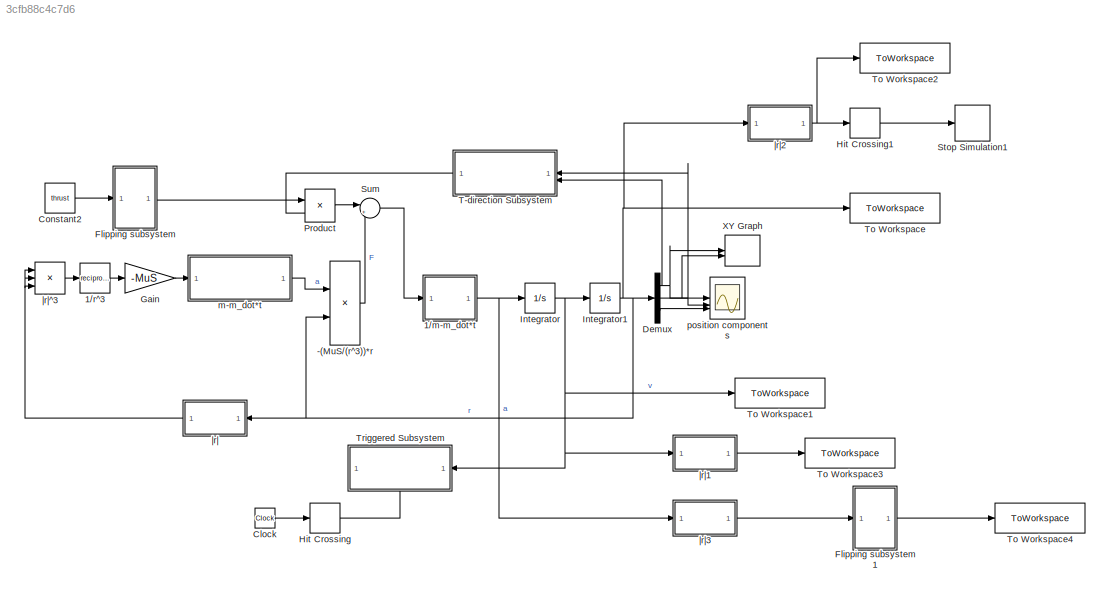
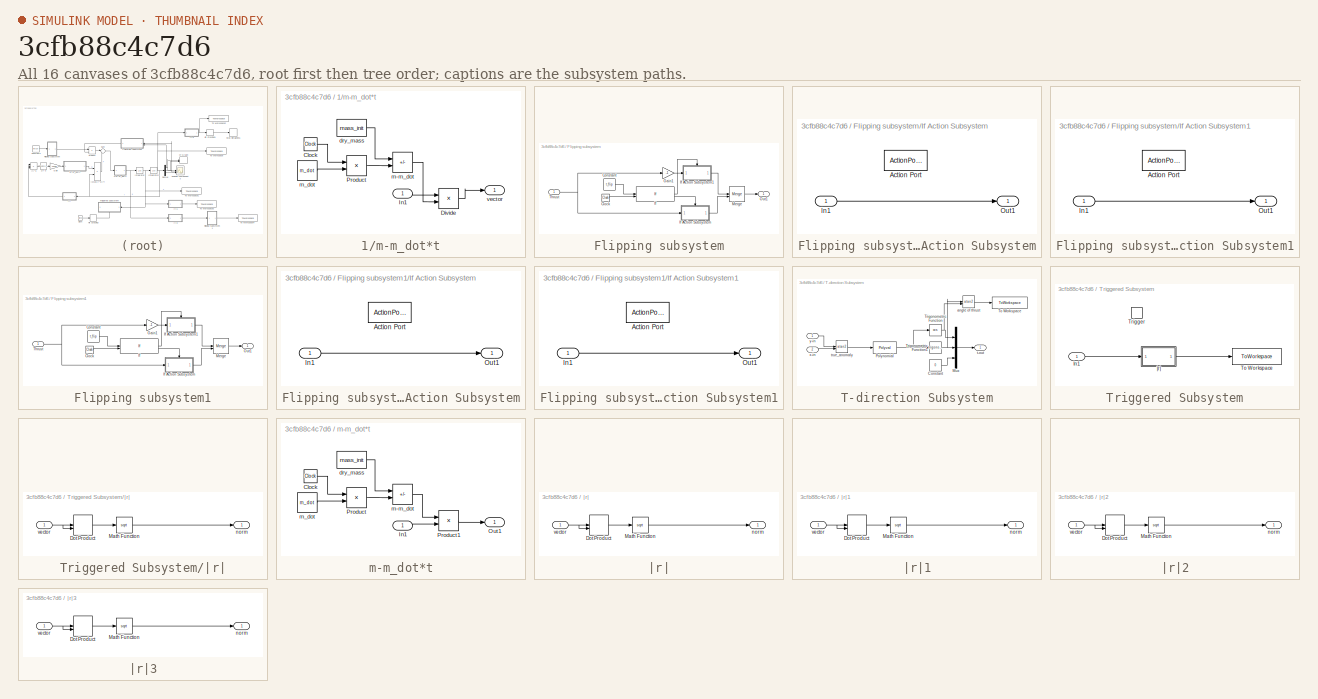
[diagram: thumbnail index - all 16 canvases of the model, root first then tree order]
MODEL slx_3cfb88c4c7d6
KIND model
CONFIG AbsTol = auto
CONFIG EnableMultiTasking = on
CONFIG FixedStep = maxstep
CONFIG MaxStep = maxstep
CONFIG MinStep = auto
CONFIG RelTol = 1e-3
CONFIG SampleTimeConstraint = Unconstrained
CONFIG SolverName = FixedStepAuto
CONFIG StartTime = 0.0
CONFIG StopTime = tstop
BLOCK [Product] -(MuS//(r^3))*r
BLOCK [SubSystem] 1//m-m_dot*t
BLOCK [Clock] 1//m-m_dot*t/Clock
BLOCK [Product] 1//m-m_dot*t/Divide
  Inputs = */
BLOCK [Inport] 1//m-m_dot*t/In1
BLOCK [Product] 1//m-m_dot*t/Product
BLOCK [Constant] 1//m-m_dot*t/dry_mass
  Value = mass_init
BLOCK [Sum] 1//m-m_dot*t/m-m_dot
  IconShape = rectangular
  Inputs = +-
BLOCK [Constant] 1//m-m_dot*t/m_dot
  Value = m_dot
BLOCK [Outport] 1//m-m_dot*t/vector
BLOCK [Math] 1//r^3
  Operator = reciprocal
BLOCK [Clock] Clock
BLOCK [Constant] Constant2
  Value = thrust
BLOCK [Demux] Demux
  DisplayOption = none
  Outputs = 3
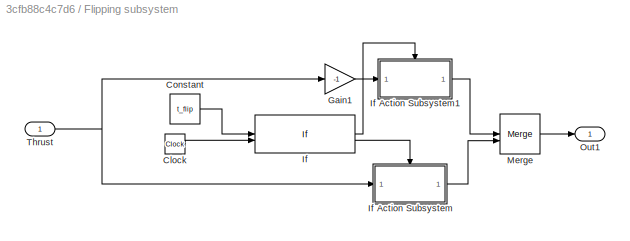
BLOCK [SubSystem] Flipping subsystem
BLOCK [Clock] Flipping subsystem/Clock
BLOCK [Constant] Flipping subsystem/Constant
  Value = t_flip
BLOCK [Gain] Flipping subsystem/Gain1
  Gain = -1
BLOCK [If] Flipping subsystem/If
  IfExpression = u2> u1
  NumInputs = 2
BLOCK [SubSystem] Flipping subsystem/If Action Subsystem
  TreatAsAtomicUnit = on
BLOCK [ActionPort] Flipping subsystem/If Action Subsystem/Action Port
  ActionPortLabel = else
BLOCK [Inport] Flipping subsystem/If Action Subsystem/In1
BLOCK [Outport] Flipping subsystem/If Action Subsystem/Out1
BLOCK [SubSystem] Flipping subsystem/If Action Subsystem1
  TreatAsAtomicUnit = on
BLOCK [ActionPort] Flipping subsystem/If Action Subsystem1/Action Port
  ActionPortLabel = if(u2> u1)
BLOCK [Inport] Flipping subsystem/If Action Subsystem1/In1
BLOCK [Outport] Flipping subsystem/If Action Subsystem1/Out1
BLOCK [Merge] Flipping subsystem/Merge
BLOCK [Outport] Flipping subsystem/Out1
BLOCK [Inport] Flipping subsystem/Thrust
BLOCK [SubSystem] Flipping subsystem1
BLOCK [Clock] Flipping subsystem1/Clock
BLOCK [Constant] Flipping subsystem1/Constant
  Value = t_flip
BLOCK [Gain] Flipping subsystem1/Gain1
  Gain = -1
BLOCK [If] Flipping subsystem1/If
  IfExpression = u2> u1
  NumInputs = 2
BLOCK [SubSystem] Flipping subsystem1/If Action Subsystem
  TreatAsAtomicUnit = on
BLOCK [ActionPort] Flipping subsystem1/If Action Subsystem/Action Port
  ActionPortLabel = else
BLOCK [Inport] Flipping subsystem1/If Action Subsystem/In1
BLOCK [Outport] Flipping subsystem1/If Action Subsystem/Out1
BLOCK [SubSystem] Flipping subsystem1/If Action Subsystem1
  TreatAsAtomicUnit = on
BLOCK [ActionPort] Flipping subsystem1/If Action Subsystem1/Action Port
  ActionPortLabel = if(u2> u1)
BLOCK [Inport] Flipping subsystem1/If Action Subsystem1/In1
BLOCK [Outport] Flipping subsystem1/If Action Subsystem1/Out1
BLOCK [Merge] Flipping subsystem1/Merge
BLOCK [Outport] Flipping subsystem1/Out1
BLOCK [Inport] Flipping subsystem1/Thrust
BLOCK [Gain] Gain
  Gain = -MuS
  OutDataTypeStr = Inherit: Same as input
  ParamDataTypeStr = Inherit: Same as input
  SaturateOnIntegerOverflow = on
BLOCK [HitCross] Hit Crossing
  HitCrossingDirection = rising
  HitCrossingOffset = t_flip
BLOCK [HitCross] Hit Crossing1
  HitCrossingDirection = rising
  HitCrossingOffset = d_o
BLOCK [Integrator] Integrator
  InitialCondition = v0
BLOCK [Integrator] Integrator1
  InitialCondition = r0
BLOCK [Product] Product
BLOCK [Stop] Stop Simulation1
BLOCK [Sum] Sum
  Inputs = |++
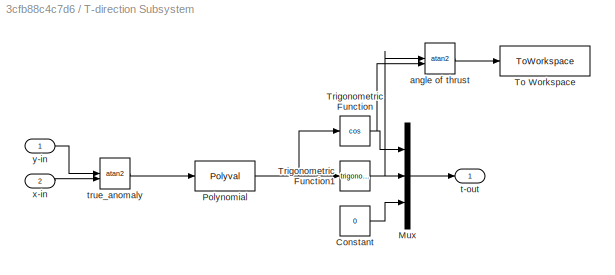
BLOCK [SubSystem] T-direction Subsystem
BLOCK [Constant] T-direction Subsystem/Constant
  Value = 0
BLOCK [Mux] T-direction Subsystem/Mux
  DisplayOption = bar
  Inputs = 3
BLOCK [Polyval] T-direction Subsystem/Polynomial
  Coefs = a_set
BLOCK [ToWorkspace] T-direction Subsystem/To Workspace
  FixptAsFi = on
  MaxDataPoints = inf
  SampleTime = -1
  Save2DSignal = 2-D array (concatenate along first dimension)
  VariableName = t_angle
BLOCK [Trigonometry] T-direction Subsystem/Trigonometric Function
  Operator = cos
BLOCK [Trigonometry] T-direction Subsystem/Trigonometric Function1
BLOCK [Trigonometry] T-direction Subsystem/angle of thrust
  Operator = atan2
BLOCK [Outport] T-direction Subsystem/t-out
BLOCK [Trigonometry] T-direction Subsystem/true_anomaly
  Operator = atan2
BLOCK [Inport] T-direction Subsystem/x-in
  Port = 2
BLOCK [Inport] T-direction Subsystem/y-in
BLOCK [ToWorkspace] To Workspace
  FixptAsFi = on
  MaxDataPoints = inf
  SampleTime = -1
  SaveFormat = Timeseries
  VariableName = pos
BLOCK [ToWorkspace] To Workspace1
  FixptAsFi = on
  MaxDataPoints = inf
  SampleTime = -1
  VariableName = vel
BLOCK [ToWorkspace] To Workspace2
  FixptAsFi = on
  MaxDataPoints = inf
  SampleTime = -1
  SaveFormat = Timeseries
  VariableName = pos_norm
BLOCK [ToWorkspace] To Workspace3
  FixptAsFi = on
  MaxDataPoints = inf
  SampleTime = -1
  SaveFormat = Timeseries
  VariableName = vel_norm
BLOCK [ToWorkspace] To Workspace4
  FixptAsFi = on
  MaxDataPoints = inf
  SampleTime = -1
  SaveFormat = Timeseries
  VariableName = accel_norm
BLOCK [SubSystem] Triggered Subsystem
  NameLocation = top
  TreatAsAtomicUnit = on
BLOCK [Inport] Triggered Subsystem/In1
BLOCK [ToWorkspace] Triggered Subsystem/To Workspace
  FixptAsFi = on
  MaxDataPoints = inf
  SampleTime = -1
  VariableName = v_max
BLOCK [TriggerPort] Triggered Subsystem/Trigger
  StatesWhenEnabling = held
  VariantControl = (inherit)
BLOCK [SubSystem] Triggered Subsystem/|r|
BLOCK [DotProduct] Triggered Subsystem/|r|/Dot Product
  OutDataTypeStr = Inherit: Inherit via internal rule
BLOCK [Math] Triggered Subsystem/|r|/Math Function
  Operator = sqrt
  SignedPower = on
BLOCK [Outport] Triggered Subsystem/|r|/norm
  VectorParamsAs1DForOutWhenUnconnected = off
BLOCK [Inport] Triggered Subsystem/|r|/vector
BLOCK [Record] XY Graph
  CompatibilityTag = XY
  FileSettingsInternal = {"entries":[{"content":{"excelSettings":{"content":{},"type":"Streamout.ExcelSettings"}},"type":"Streamout.FileSettingStorage","uuid":"ff7e06af-6e21-4bd0-9966-7a4d89266818"}],"packageUris":["http://schema.mathworks.com/mf0/streamout_blocks/R2020a"],"version":"1.0"}
  Layout = [1 1]
  SignalsInternal = {"entries":[{"content":{"signals":[{"content":{"blockPath":["orbitEOM_o_e_graph/XY Graph"],"channel":[],"dimensions":[1],"domain":"orbitEOM_o_e_graph/XY Graph","lineColor":"#a2142f","plots":[1],"port":1,"sid":[""],"signalID":75897,"signalName":"Demux:1"},"type":"RecordBlkView.Signal","uuid":"e02dfef0-b3ca-4bda-9eec-72397f5a5bda"},{"content":{"blockPath":["orbitEOM_o_e_graph/XY Graph"],"channel":[]...<+405ch>
  VisualizationBindings = {"xyplotplugin":{"info":[{"series":[{"bindingParametersList":[{"parameter":"X-Axis","signalID":75897,"signalName":"Demux:1"},{"parameter":"Y-Axis","signalID":75901,"signalName":"Demux:2"}],"seriesID":42219}],"subplotID":1}]}}
BLOCK [SubSystem] m-m_dot*t
BLOCK [Clock] m-m_dot*t/Clock
BLOCK [Inport] m-m_dot*t/In1
BLOCK [Outport] m-m_dot*t/Out1
BLOCK [Product] m-m_dot*t/Product
BLOCK [Product] m-m_dot*t/Product1
BLOCK [Constant] m-m_dot*t/dry_mass
  Value = mass_init
BLOCK [Sum] m-m_dot*t/m-m_dot
  IconShape = rectangular
  Inputs = +-
BLOCK [Constant] m-m_dot*t/m_dot
  Value = m_dot
BLOCK [Scope] position components
  Floating = off
  NumInputPorts = 3
  ScopeSpecificationString = Simulink.scopes.TimeScopeBlockCfg('CurrentConfiguration', extmgr.ConfigurationSet(extmgr.Configuration('Core','General UI',true),extmgr.Configuration('Core','Source UI',true),extmgr.Configuration('Sources','WiredSimulink',true,'DataLoggingSaveFormat','StructureWithTime','DataLoggingDecimation','1','DataLoggingDecimateData',true,'DataLoggingVariableName','ScopeData1'),extmgr.Configuration('Visuals'...<+3002ch>
BLOCK [SubSystem] |r|
BLOCK [DotProduct] |r|/Dot Product
  OutDataTypeStr = Inherit: Inherit via internal rule
BLOCK [Math] |r|/Math Function
  Operator = sqrt
  SignedPower = on
BLOCK [Outport] |r|/norm
  VectorParamsAs1DForOutWhenUnconnected = off
BLOCK [Inport] |r|/vector
BLOCK [SubSystem] |r|1
BLOCK [DotProduct] |r|1/Dot Product
  OutDataTypeStr = Inherit: Inherit via internal rule
BLOCK [Math] |r|1/Math Function
  Operator = sqrt
  SignedPower = on
BLOCK [Outport] |r|1/norm
  VectorParamsAs1DForOutWhenUnconnected = off
BLOCK [Inport] |r|1/vector
BLOCK [SubSystem] |r|2
BLOCK [DotProduct] |r|2/Dot Product
  OutDataTypeStr = Inherit: Inherit via internal rule
BLOCK [Math] |r|2/Math Function
  Operator = sqrt
  SignedPower = on
BLOCK [Outport] |r|2/norm
  VectorParamsAs1DForOutWhenUnconnected = off
BLOCK [Inport] |r|2/vector
BLOCK [SubSystem] |r|3
BLOCK [DotProduct] |r|3/Dot Product
  OutDataTypeStr = Inherit: Inherit via internal rule
BLOCK [Math] |r|3/Math Function
  Operator = sqrt
  SignedPower = on
BLOCK [Outport] |r|3/norm
  VectorParamsAs1DForOutWhenUnconnected = off
BLOCK [Inport] |r|3/vector
BLOCK [Product] |r|^3
  Inputs = 3
LINE -(MuS//(r^3))*r:1 -> Sum:2
LINE 1//m-m_dot*t/Clock:1 -> 1//m-m_dot*t/Product:1
LINE 1//m-m_dot*t/Divide:1 -> 1//m-m_dot*t/vector:1
LINE 1//m-m_dot*t/In1:1 -> 1//m-m_dot*t/Divide:1
LINE 1//m-m_dot*t/Product:1 -> 1//m-m_dot*t/m-m_dot:2
LINE 1//m-m_dot*t/dry_mass:1 -> 1//m-m_dot*t/m-m_dot:1
LINE 1//m-m_dot*t/m-m_dot:1 -> 1//m-m_dot*t/Divide:2
LINE 1//m-m_dot*t/m_dot:1 -> 1//m-m_dot*t/Product:2
NET 1//m-m_dot*t:1 -> Integrator:1, |r|3:1
LINE 1//r^3:1 -> Gain:1
LINE Clock:1 -> Hit Crossing:1
LINE Constant2:1 -> Flipping subsystem:1
NET Demux:1 -> T-direction Subsystem:2, XY Graph:1, position components:1
NET Demux:2 -> T-direction Subsystem:1, XY Graph:2, position components:2
LINE Demux:3 -> position components:3
LINE Flipping subsystem/Clock:1 -> Flipping subsystem/If:2
LINE Flipping subsystem/Constant:1 -> Flipping subsystem/If:1
LINE Flipping subsystem/Gain1:1 -> Flipping subsystem/If Action Subsystem1:1
LINE Flipping subsystem/If Action Subsystem/In1:1 -> Flipping subsystem/If Action Subsystem/Out1:1
LINE Flipping subsystem/If Action Subsystem1/In1:1 -> Flipping subsystem/If Action Subsystem1/Out1:1
LINE Flipping subsystem/If Action Subsystem1:1 -> Flipping subsystem/Merge:1
LINE Flipping subsystem/If Action Subsystem:1 -> Flipping subsystem/Merge:2
LINE Flipping subsystem/If:1 -> Flipping subsystem/If Action Subsystem1:ifaction
LINE Flipping subsystem/If:2 -> Flipping subsystem/If Action Subsystem:ifaction
LINE Flipping subsystem/Merge:1 -> Flipping subsystem/Out1:1
NET Flipping subsystem/Thrust:1 -> Flipping subsystem/Gain1:1, Flipping subsystem/If Action Subsystem:1
LINE Flipping subsystem1/Clock:1 -> Flipping subsystem1/If:2
LINE Flipping subsystem1/Constant:1 -> Flipping subsystem1/If:1
LINE Flipping subsystem1/Gain1:1 -> Flipping subsystem1/If Action Subsystem1:1
LINE Flipping subsystem1/If Action Subsystem/In1:1 -> Flipping subsystem1/If Action Subsystem/Out1:1
LINE Flipping subsystem1/If Action Subsystem1/In1:1 -> Flipping subsystem1/If Action Subsystem1/Out1:1
LINE Flipping subsystem1/If Action Subsystem1:1 -> Flipping subsystem1/Merge:1
LINE Flipping subsystem1/If Action Subsystem:1 -> Flipping subsystem1/Merge:2
LINE Flipping subsystem1/If:1 -> Flipping subsystem1/If Action Subsystem1:ifaction
LINE Flipping subsystem1/If:2 -> Flipping subsystem1/If Action Subsystem:ifaction
LINE Flipping subsystem1/Merge:1 -> Flipping subsystem1/Out1:1
NET Flipping subsystem1/Thrust:1 -> Flipping subsystem1/Gain1:1, Flipping subsystem1/If Action Subsystem:1
LINE Flipping subsystem1:1 -> To Workspace4:1
LINE Flipping subsystem:1 -> Product:1
LINE Gain:1 -> m-m_dot*t:1
LINE Hit Crossing1:1 -> Stop Simulation1:1
LINE Hit Crossing:1 -> Triggered Subsystem:trigger
NET Integrator1:1 -> -(MuS//(r^3))*r:2, Demux:1, To Workspace:1, |r|2:1, |r|:1
NET Integrator:1 -> Integrator1:1, To Workspace1:1, Triggered Subsystem:1, |r|1:1
LINE Product:1 -> Sum:1
LINE Sum:1 -> 1//m-m_dot*t:1
LINE T-direction Subsystem/Constant:1 -> T-direction Subsystem/Mux:3
LINE T-direction Subsystem/Mux:1 -> T-direction Subsystem/t-out:1
NET T-direction Subsystem/Polynomial:1 -> T-direction Subsystem/Trigonometric Function1:1, T-direction Subsystem/Trigonometric Function:1
NET T-direction Subsystem/Trigonometric Function1:1 -> T-direction Subsystem/Mux:2, T-direction Subsystem/angle of thrust:1
NET T-direction Subsystem/Trigonometric Function:1 -> T-direction Subsystem/Mux:1, T-direction Subsystem/angle of thrust:2
LINE T-direction Subsystem/angle of thrust:1 -> T-direction Subsystem/To Workspace:1
LINE T-direction Subsystem/true_anomaly:1 -> T-direction Subsystem/Polynomial:1
LINE T-direction Subsystem/x-in:1 -> T-direction Subsystem/true_anomaly:2
LINE T-direction Subsystem/y-in:1 -> T-direction Subsystem/true_anomaly:1
LINE T-direction Subsystem:1 -> Product:2
LINE Triggered Subsystem/In1:1 -> Triggered Subsystem/|r|:1
LINE Triggered Subsystem/|r|/Dot Product:1 -> Triggered Subsystem/|r|/Math Function:1
LINE Triggered Subsystem/|r|/Math Function:1 -> Triggered Subsystem/|r|/norm:1
NET Triggered Subsystem/|r|/vector:1 -> Triggered Subsystem/|r|/Dot Product:1, Triggered Subsystem/|r|/Dot Product:2
LINE Triggered Subsystem/|r|:1 -> Triggered Subsystem/To Workspace:1
LINE m-m_dot*t/Clock:1 -> m-m_dot*t/Product:1
LINE m-m_dot*t/In1:1 -> m-m_dot*t/Product1:2
LINE m-m_dot*t/Product1:1 -> m-m_dot*t/Out1:1
LINE m-m_dot*t/Product:1 -> m-m_dot*t/m-m_dot:2
LINE m-m_dot*t/dry_mass:1 -> m-m_dot*t/m-m_dot:1
LINE m-m_dot*t/m-m_dot:1 -> m-m_dot*t/Product1:1
LINE m-m_dot*t/m_dot:1 -> m-m_dot*t/Product:2
LINE m-m_dot*t:1 -> -(MuS//(r^3))*r:1
LINE |r|/Dot Product:1 -> |r|/Math Function:1
LINE |r|/Math Function:1 -> |r|/norm:1
NET |r|/vector:1 -> |r|/Dot Product:1, |r|/Dot Product:2
LINE |r|1/Dot Product:1 -> |r|1/Math Function:1
LINE |r|1/Math Function:1 -> |r|1/norm:1
NET |r|1/vector:1 -> |r|1/Dot Product:1, |r|1/Dot Product:2
LINE |r|1:1 -> To Workspace3:1
LINE |r|2/Dot Product:1 -> |r|2/Math Function:1
LINE |r|2/Math Function:1 -> |r|2/norm:1
NET |r|2/vector:1 -> |r|2/Dot Product:1, |r|2/Dot Product:2
NET |r|2:1 -> Hit Crossing1:1, To Workspace2:1
LINE |r|3/Dot Product:1 -> |r|3/Math Function:1
LINE |r|3/Math Function:1 -> |r|3/norm:1
NET |r|3/vector:1 -> |r|3/Dot Product:1, |r|3/Dot Product:2
LINE |r|3:1 -> Flipping subsystem1:1
NET |r|:1 -> |r|^3:1, |r|^3:2, |r|^3:3
LINE |r|^3:1 -> 1//r^3:1
note: NET lines group one-source signal fan-out (src -> all destinations, sorted); 1:1 wires keep LINE
